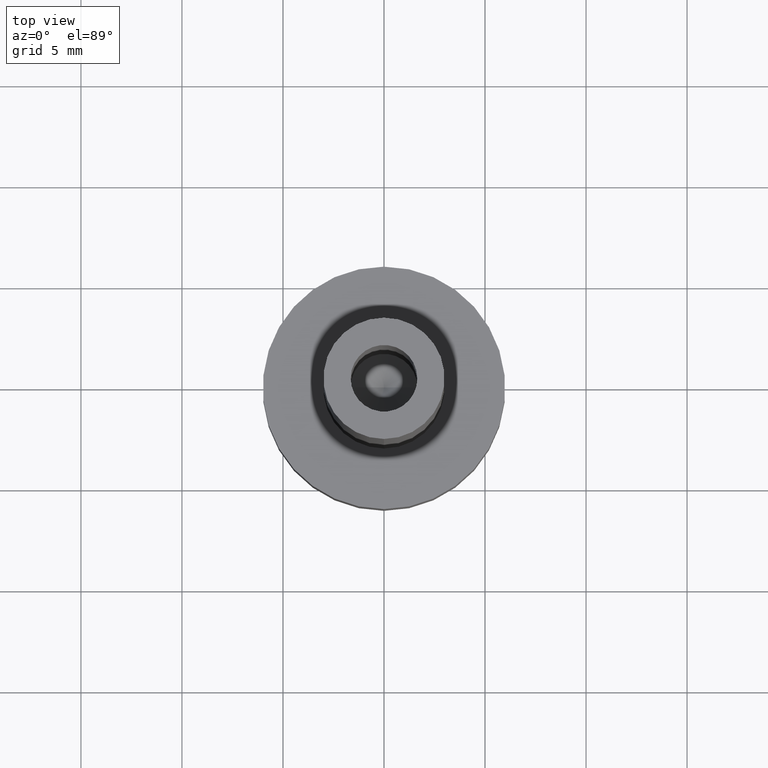
[diagram: clean part render]
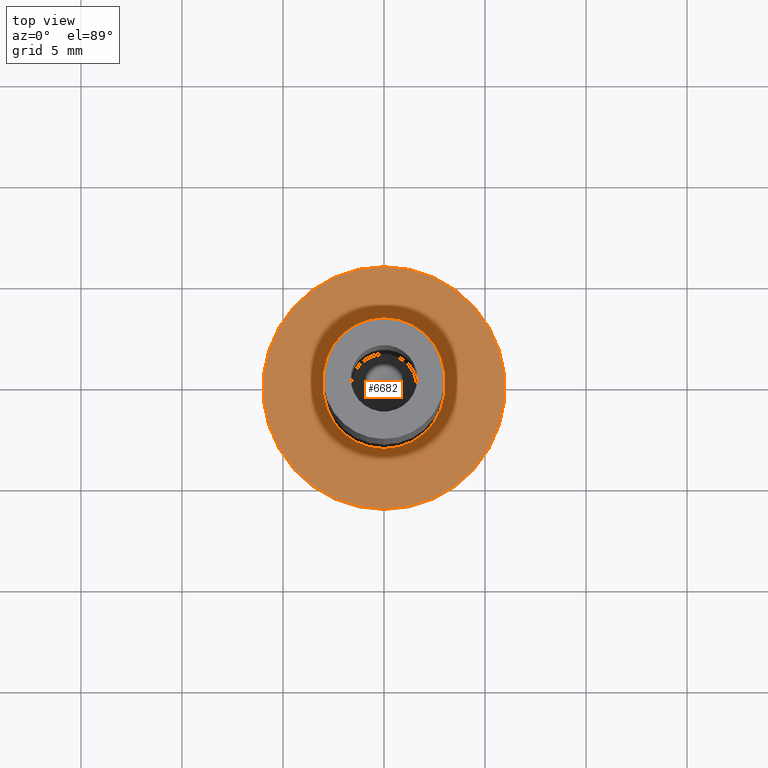
[diagram: same view with one face highlighted and labeled with its STEP entity id]
A machine part, top view. The second image highlights one B-rep face of the part: STEP entity #6682.
In plain terms, the highlighted planar face has unit normal (0, -0, 1).
Its self-contained STEP definition (entity closure, byte-faithful):
#197 = DIRECTION ( 'NONE',  ( 0.0000000000000000000, 1.000000000000000000, 0.0000000000000000000 ) ) ;
#873 = DIRECTION ( 'NONE',  ( -0.0000000000000000000, 1.224646799147353200E-016, -1.000000000000000000 ) ) ;
#904 = VERTEX_POINT ( 'NONE', #11770 ) ;
#1047 = EDGE_LOOP ( 'NONE', ( #1571, #8978 ) ) ;
#1276 = DIRECTION ( 'NONE',  ( 0.0000000000000000000, -1.224646799147353200E-016, 1.000000000000000000 ) ) ;
#1369 = AXIS2_PLACEMENT_3D ( 'NONE', #1922, #12257, #6594 ) ;
#1571 = ORIENTED_EDGE ( 'NONE', *, *, #8109, .F. ) ;
#1922 = CARTESIAN_POINT ( 'NONE',  ( 0.0000000000000000000, -6.123233995736768300E-016, 5.000000000000001800 ) ) ;
#2472 = DIRECTION ( 'NONE',  ( -0.0000000000000000000, 1.224646799147353200E-016, -1.000000000000000000 ) ) ;
#2501 = CIRCLE ( 'NONE', #4299, 2.999999999999998700 ) ;
#2915 = VERTEX_POINT ( 'NONE', #6115 ) ;
#4060 = EDGE_CURVE ( 'NONE', #904, #11958, #2501, .T. ) ;
#4299 = AXIS2_PLACEMENT_3D ( 'NONE', #6304, #2472, #9071 ) ;
#4884 = EDGE_CURVE ( 'NONE', #11958, #904, #7375, .T. ) ;
#5851 = DIRECTION ( 'NONE',  ( -0.0000000000000000000, 1.224646799147353200E-016, -1.000000000000000000 ) ) ;
#6075 = CARTESIAN_POINT ( 'NONE',  ( 0.0000000000000000000, 6.000000000000000000, 5.000000000000002700 ) ) ;
#6115 = CARTESIAN_POINT ( 'NONE',  ( 0.0000000000000000000, 6.000000000000000000, 5.000000000000002700 ) ) ;
#6157 = PLANE ( 'NONE',  #7928 ) ;
#6304 = CARTESIAN_POINT ( 'NONE',  ( 0.0000000000000000000, -6.123233995736768300E-016, 5.000000000000001800 ) ) ;
#6594 = DIRECTION ( 'NONE',  ( 0.0000000000000000000, 1.000000000000000000, 1.445602896647338900E-016 ) ) ;
#6682 = ADVANCED_FACE ( 'NONE', ( #10754, #10177 ), #6157, .T. ) ;
#7109 = DIRECTION ( 'NONE',  ( 0.0000000000000000000, -1.000000000000000000, -1.224646799147353200E-016 ) ) ;
#7173 = CARTESIAN_POINT ( 'NONE',  ( 7.347880794884121700E-016, -6.000000000000001800, 5.000000000000000900 ) ) ;
#7248 = AXIS2_PLACEMENT_3D ( 'NONE', #8400, #873, #10183 ) ;
#7375 = CIRCLE ( 'NONE', #8000, 2.999999999999998700 ) ;
#7928 = AXIS2_PLACEMENT_3D ( 'NONE', #6075, #1276, #7109 ) ;
#8000 = AXIS2_PLACEMENT_3D ( 'NONE', #10589, #5851, #197 ) ;
#8109 = EDGE_CURVE ( 'NONE', #2915, #9169, #10581, .T. ) ;
#8400 = CARTESIAN_POINT ( 'NONE',  ( 0.0000000000000000000, -6.123233995736768300E-016, 5.000000000000001800 ) ) ;
#8978 = ORIENTED_EDGE ( 'NONE', *, *, #9018, .F. ) ;
#9018 = EDGE_CURVE ( 'NONE', #9169, #2915, #12063, .T. ) ;
#9071 = DIRECTION ( 'NONE',  ( 0.0000000000000000000, 1.000000000000000000, 0.0000000000000000000 ) ) ;
#9169 = VERTEX_POINT ( 'NONE', #7173 ) ;
#9510 = ORIENTED_EDGE ( 'NONE', *, *, #4884, .T. ) ;
#9792 = ORIENTED_EDGE ( 'NONE', *, *, #4060, .T. ) ;
#10177 = FACE_OUTER_BOUND ( 'NONE', #1047, .T. ) ;
#10183 = DIRECTION ( 'NONE',  ( 0.0000000000000000000, 1.000000000000000000, 1.445602896647338900E-016 ) ) ;
#10421 = EDGE_LOOP ( 'NONE', ( #9510, #9792 ) ) ;
#10581 = CIRCLE ( 'NONE', #1369, 6.000000000000000900 ) ;
#10589 = CARTESIAN_POINT ( 'NONE',  ( 0.0000000000000000000, -6.123233995736768300E-016, 5.000000000000001800 ) ) ;
#10754 = FACE_BOUND ( 'NONE', #10421, .T. ) ;
#10801 = CARTESIAN_POINT ( 'NONE',  ( 0.0000000000000000000, 2.999999999999998200, 5.000000000000001800 ) ) ;
#11770 = CARTESIAN_POINT ( 'NONE',  ( 3.673940397442058900E-016, -2.999999999999999100, 5.000000000000001800 ) ) ;
#11958 = VERTEX_POINT ( 'NONE', #10801 ) ;
#12063 = CIRCLE ( 'NONE', #7248, 6.000000000000000900 ) ;
#12257 = DIRECTION ( 'NONE',  ( -0.0000000000000000000, 1.224646799147353200E-016, -1.000000000000000000 ) ) ;